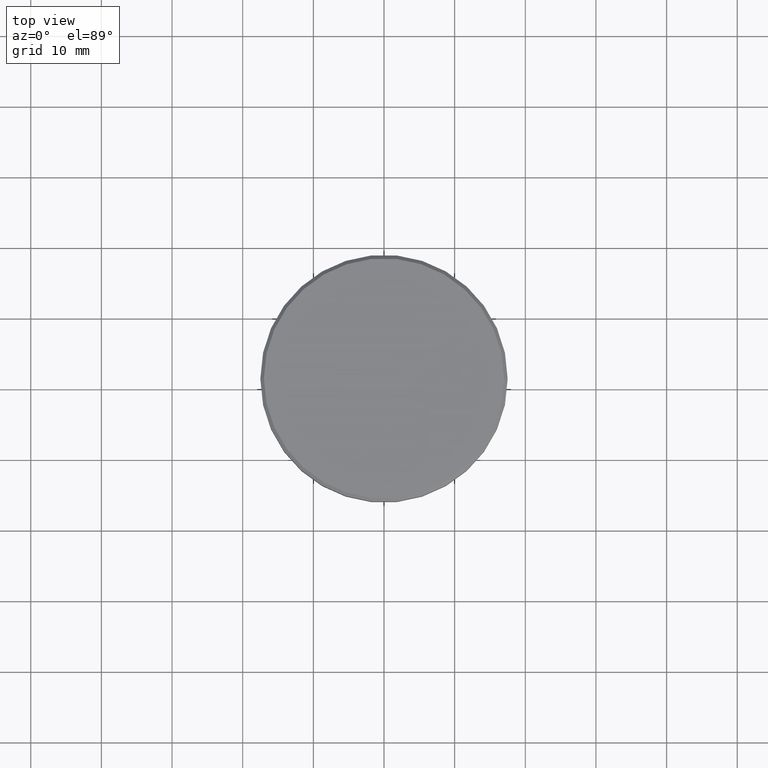
[diagram: clean part render]
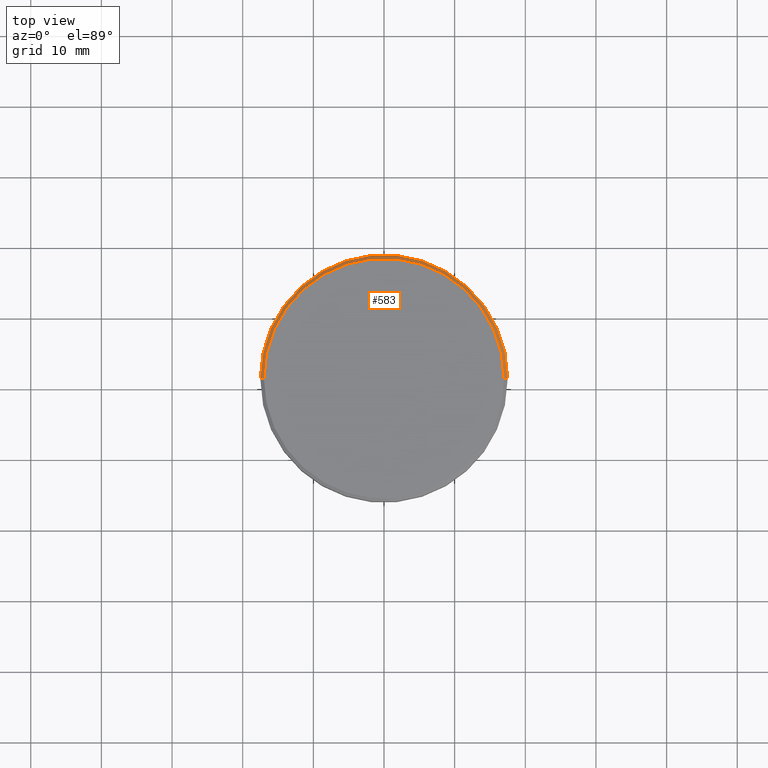
[diagram: same view with one face highlighted and labeled with its STEP entity id]
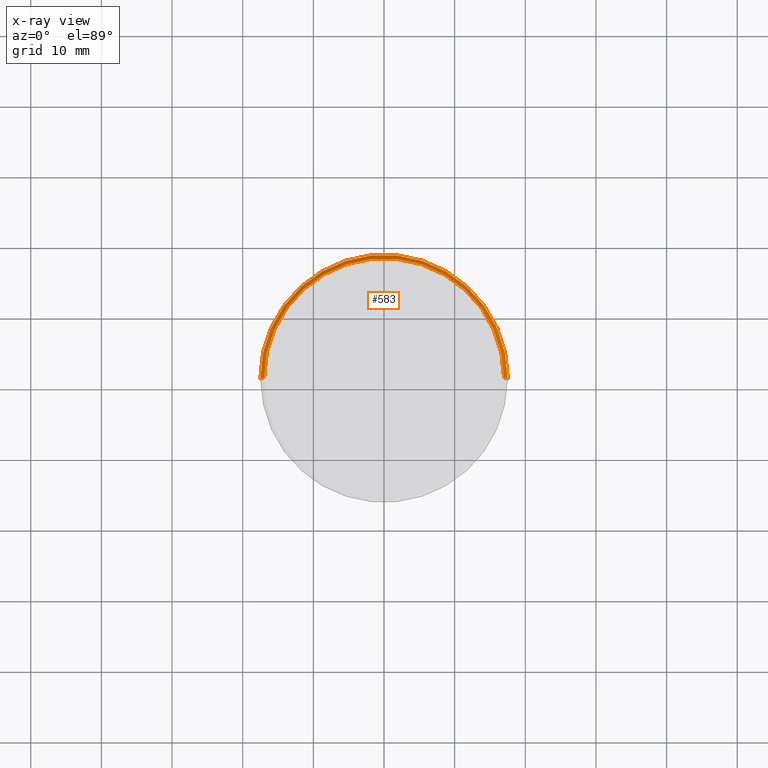
[diagram: x-ray of the same camera — body ghosted, the highlighted face saturated]
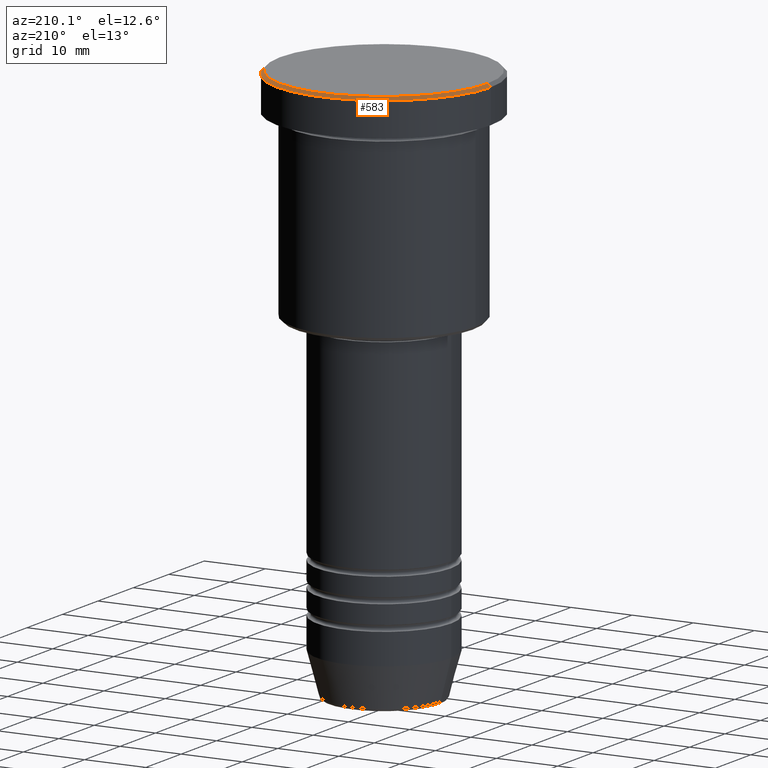
[diagram: same view with one face highlighted and labeled with its STEP entity id]
A machine part, top view. The second image highlights one B-rep face of the part: STEP entity #583.
The next image is the same camera in x-ray: the body ghosted, the highlighted face saturated — about 0% of this face is hidden behind the body in this view.
A second angle (auxiliary view) of the same face is appended — the face is thin or edge-on in the first view.
In plain terms, the highlighted conical surface has half-angle 45 deg.
Its self-contained STEP definition (entity closure, byte-faithful):
#57 = DIRECTION ( 'NONE',  ( 0.000000000000000000, 0.000000000000000000, -1.000000000000000000 ) ) ;
#71 = ORIENTED_EDGE ( 'NONE', *, *, #1104, .F. ) ;
#79 = AXIS2_PLACEMENT_3D ( 'NONE', #1152, #494, #854 ) ;
#94 = EDGE_CURVE ( 'NONE', #341, #1132, #571, .T. ) ;
#216 = DIRECTION ( 'NONE',  ( -1.000000000000000000, 0.000000000000000000, 0.000000000000000000 ) ) ;
#260 = EDGE_LOOP ( 'NONE', ( #71, #366, #452, #510 ) ) ;
#291 = CARTESIAN_POINT ( 'NONE',  ( 17.00000000000000000, 2.081899558550500280E-15, 0.000000000000000000 ) ) ;
#341 = VERTEX_POINT ( 'NONE', #685 ) ;
#366 = ORIENTED_EDGE ( 'NONE', *, *, #94, .T. ) ;
#403 = AXIS2_PLACEMENT_3D ( 'NONE', #874, #57, #418 ) ;
#418 = DIRECTION ( 'NONE',  ( 1.000000000000000000, 0.000000000000000000, 0.000000000000000000 ) ) ;
#452 = ORIENTED_EDGE ( 'NONE', *, *, #1165, .F. ) ;
#468 = CARTESIAN_POINT ( 'NONE',  ( 0.000000000000000000, 0.000000000000000000, 0.000000000000000000 ) ) ;
#488 = CARTESIAN_POINT ( 'NONE',  ( -17.00000000000000000, 0.000000000000000000, 0.000000000000000000 ) ) ;
#494 = DIRECTION ( 'NONE',  ( -0.000000000000000000, -0.000000000000000000, 1.000000000000000000 ) ) ;
#510 = ORIENTED_EDGE ( 'NONE', *, *, #547, .F. ) ;
#524 = AXIS2_PLACEMENT_3D ( 'NONE', #468, #1123, #216 ) ;
#547 = EDGE_CURVE ( 'NONE', #1022, #964, #574, .T. ) ;
#559 = CIRCLE ( 'NONE', #403, 17.50000000000000000 ) ;
#571 = LINE ( 'NONE', #291, #727 ) ;
#574 = LINE ( 'NONE', #926, #914 ) ;
#583 = ADVANCED_FACE ( 'NONE', ( #843 ), #728, .T. ) ;
#599 = CIRCLE ( 'NONE', #79, 17.00000000000000000 ) ;
#685 = CARTESIAN_POINT ( 'NONE',  ( 17.00000000000000000, 2.112515728529184067E-15, 0.000000000000000000 ) ) ;
#727 = VECTOR ( 'NONE', #750, 1000.000000000000000 ) ;
#728 = CONICAL_SURFACE ( 'NONE', #524, 17.00000000000000000, 0.7853981633974346233 ) ;
#750 = DIRECTION ( 'NONE',  ( 0.7071067811865378028, 8.659560562354814529E-17, -0.7071067811865573427 ) ) ;
#763 = DIRECTION ( 'NONE',  ( -0.7071067811865378028, 0.000000000000000000, -0.7071067811865573427 ) ) ;
#843 = FACE_OUTER_BOUND ( 'NONE', #260, .T. ) ;
#854 = DIRECTION ( 'NONE',  ( 1.000000000000000000, 0.000000000000000000, 0.000000000000000000 ) ) ;
#874 = CARTESIAN_POINT ( 'NONE',  ( 0.000000000000000000, 0.000000000000000000, -0.5000000000000142109 ) ) ;
#914 = VECTOR ( 'NONE', #763, 1000.000000000000000 ) ;
#925 = CARTESIAN_POINT ( 'NONE',  ( -17.50000000000000000, 2.143131898507868248E-15, -0.5000000000000142109 ) ) ;
#926 = CARTESIAN_POINT ( 'NONE',  ( -17.00000000000000000, 0.000000000000000000, 0.000000000000000000 ) ) ;
#964 = VERTEX_POINT ( 'NONE', #925 ) ;
#1022 = VERTEX_POINT ( 'NONE', #488 ) ;
#1057 = CARTESIAN_POINT ( 'NONE',  ( 17.50000000000000000, 0.000000000000000000, -0.5000000000000142109 ) ) ;
#1104 = EDGE_CURVE ( 'NONE', #341, #1022, #599, .T. ) ;
#1123 = DIRECTION ( 'NONE',  ( 0.000000000000000000, 0.000000000000000000, -1.000000000000000000 ) ) ;
#1132 = VERTEX_POINT ( 'NONE', #1057 ) ;
#1152 = CARTESIAN_POINT ( 'NONE',  ( 0.000000000000000000, 0.000000000000000000, 0.000000000000000000 ) ) ;
#1165 = EDGE_CURVE ( 'NONE', #964, #1132, #559, .T. ) ;